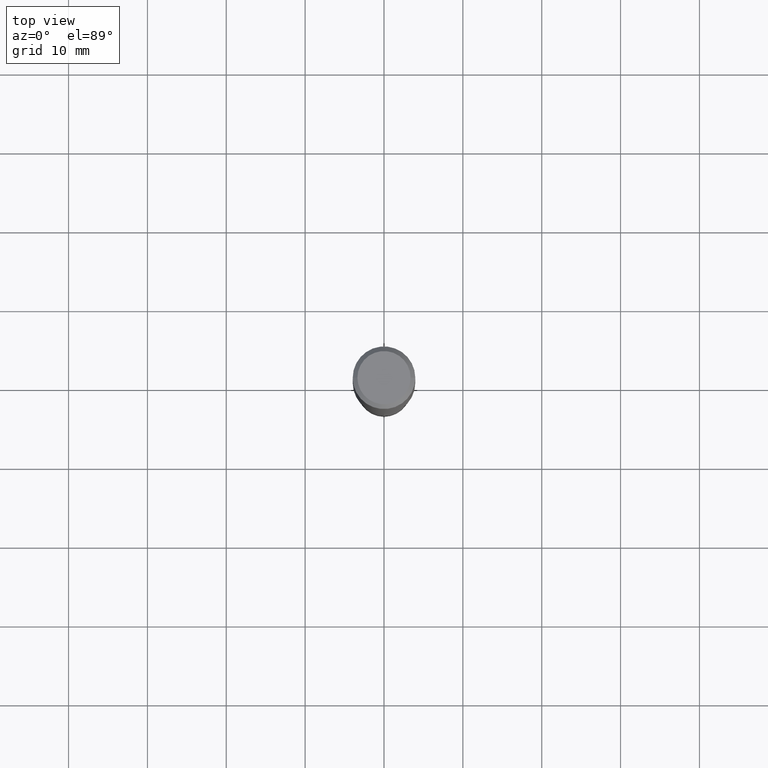
[diagram: clean part render]
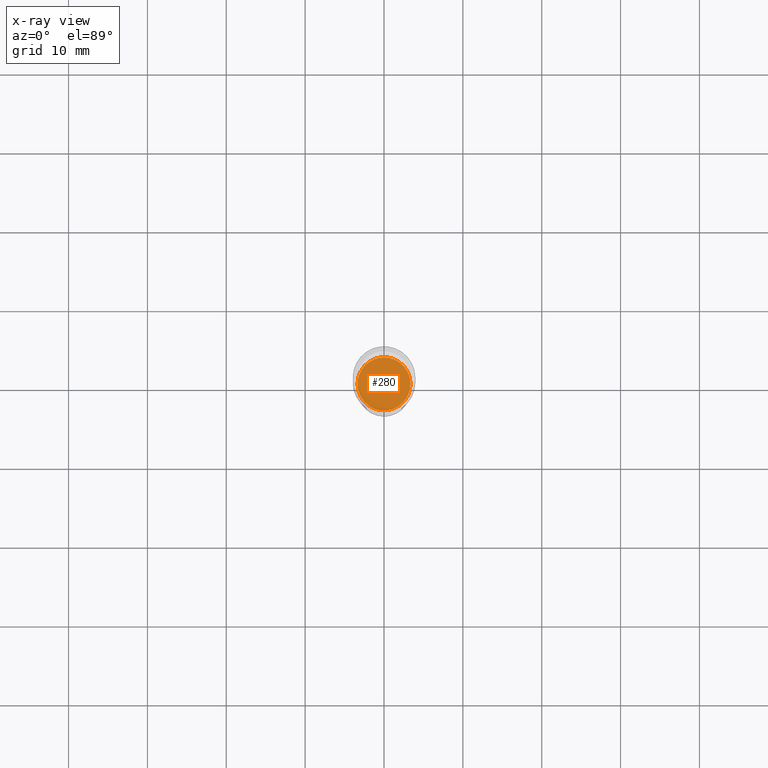
[diagram: x-ray — body ghosted, one internal face saturated and labeled with its STEP entity id]
A machine part, top view, then the same camera in x-ray: the body is ghosted and one INTERNAL B-rep face — a face not visible from any outside direction — is saturated and labeled: STEP entity #280.
In plain terms, the highlighted planar face has unit normal (-0, 0, 1).
Its self-contained STEP definition (entity closure, byte-faithful):
#13 = DIRECTION ( 'NONE',  ( -2.445468806185136597E-29, 3.491481338843145583E-15, 1.000000000000000000 ) ) ;
#20 = VERTEX_POINT ( 'NONE', #471 ) ;
#29 = EDGE_CURVE ( 'NONE', #145, #20, #58, .T. ) ;
#46 = CARTESIAN_POINT ( 'NONE',  ( 4.433390398733034659E-29, -6.329706519188739286E-15, -1.812900000000000178 ) ) ;
#48 = ORIENTED_EDGE ( 'NONE', *, *, #131, .F. ) ;
#52 = AXIS2_PLACEMENT_3D ( 'NONE', #46, #13, #322 ) ;
#58 = CIRCLE ( 'NONE', #52, 0.1325000000000000067 ) ;
#73 = DIRECTION ( 'NONE',  ( 1.000000000000000000, -6.982962677686269866E-15, 0.000000000000000000 ) ) ;
#109 = CARTESIAN_POINT ( 'NONE',  ( -0.1325000000000000067, -5.385588167132495686E-15, -1.812900000000000178 ) ) ;
#113 = FACE_OUTER_BOUND ( 'NONE', #432, .T. ) ;
#131 = EDGE_CURVE ( 'NONE', #20, #145, #260, .T. ) ;
#144 = PLANE ( 'NONE',  #333 ) ;
#145 = VERTEX_POINT ( 'NONE', #109 ) ;
#246 = DIRECTION ( 'NONE',  ( -2.438088387897960049E-29, 3.491481338843145188E-15, 1.000000000000000000 ) ) ;
#260 = CIRCLE ( 'NONE', #434, 0.1325000000000000067 ) ;
#280 = ADVANCED_FACE ( 'NONE', ( #113 ), #144, .F. ) ;
#283 = DIRECTION ( 'NONE',  ( 1.000000000000000000, -6.982962677686265922E-15, 4.876176775795935793E-29 ) ) ;
#299 = CARTESIAN_POINT ( 'NONE',  ( 4.433390398733034659E-29, -6.329706519188739286E-15, -1.812900000000000178 ) ) ;
#322 = DIRECTION ( 'NONE',  ( 1.000000000000000000, -6.982962677686269866E-15, 0.000000000000000000 ) ) ;
#333 = AXIS2_PLACEMENT_3D ( 'NONE', #299, #246, #283 ) ;
#365 = ORIENTED_EDGE ( 'NONE', *, *, #29, .F. ) ;
#375 = CARTESIAN_POINT ( 'NONE',  ( 4.433390398733034659E-29, -6.329706519188739286E-15, -1.812900000000000178 ) ) ;
#413 = DIRECTION ( 'NONE',  ( -2.445468806185136597E-29, 3.491481338843145583E-15, 1.000000000000000000 ) ) ;
#432 = EDGE_LOOP ( 'NONE', ( #48, #365 ) ) ;
#434 = AXIS2_PLACEMENT_3D ( 'NONE', #375, #413, #73 ) ;
#471 = CARTESIAN_POINT ( 'NONE',  ( 0.1325000000000000067, -7.254949073982170888E-15, -1.812900000000000178 ) ) ;